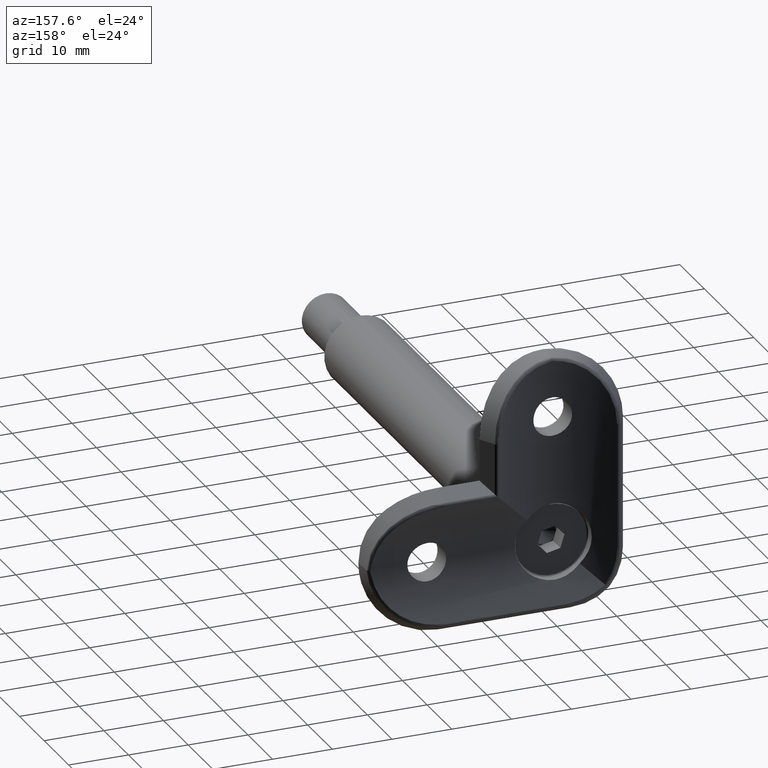
[diagram: clean part render]
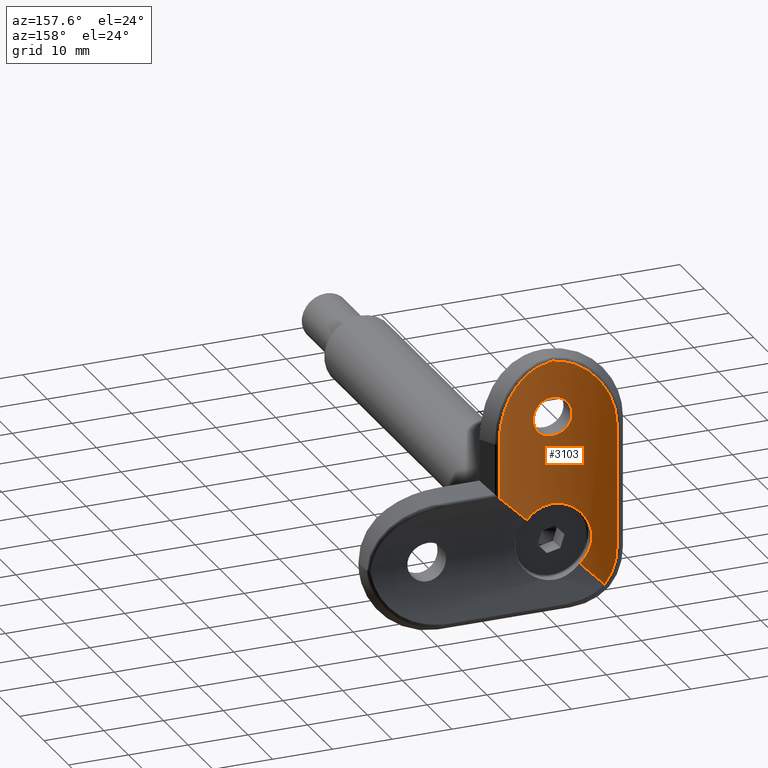
[diagram: same view with one face highlighted and labeled with its STEP entity id]
A machine part, auxiliary view. The second image highlights one B-rep face of the part: STEP entity #3103.
In plain terms, the highlighted cylindrical surface (partial cylindrical patch) has radius 21.2 mm, axis along (0, 0, 1).
Its self-contained STEP definition (entity closure, byte-faithful):
#14 = CARTESIAN_POINT ( 'NONE',  ( 2.821697825890808100, 3.688285540232296700, -11.62654535482909800 ) ) ;
#235 = CARTESIAN_POINT ( 'NONE',  ( 8.028210341979745500, 5.077781140750707900, -5.400692801681594300 ) ) ;
#257 = CARTESIAN_POINT ( 'NONE',  ( 0.8196855347610778600, 3.511953254549009100, -24.79018066023038000 ) ) ;
#259 = CARTESIAN_POINT ( 'NONE',  ( -8.979762680300606100, 5.494134989752449600, -7.219338350759732800 ) ) ;
#274 = CARTESIAN_POINT ( 'NONE',  ( 0.7008956395690474400, 3.508757327635668900, -0.6866340465157700900 ) ) ;
#307 = CARTESIAN_POINT ( 'NONE',  ( -9.648266983172643300, 5.822637755928643500, -9.564180071120645700 ) ) ;
#473 = CARTESIAN_POINT ( 'NONE',  ( -3.083140140979247200, 3.725230521975633600, -11.04954152590610800 ) ) ;
#526 = CARTESIAN_POINT ( 'NONE',  ( -1.982938509338522300, 3.592202637524425600, -7.416354507820790900 ) ) ;
#632 = CARTESIAN_POINT ( 'NONE',  ( -3.249920036851538600, 3.750584262071138500, -10.21354612878066000 ) ) ;
#679 = CARTESIAN_POINT ( 'NONE',  ( -6.939253979539715000, 4.625474900099697500, -37.93925397953974300 ) ) ;
#686 =( BOUNDED_CURVE ( )  B_SPLINE_CURVE ( 3, ( #11320, #12508, #6661, #7909 ),
 .UNSPECIFIED., .F., .F. ) 
 B_SPLINE_CURVE_WITH_KNOTS ( ( 4, 4 ),
 ( 1.086527370918879400, 1.360793071037660100 ),
 .UNSPECIFIED. ) 
 CURVE ( )  GEOMETRIC_REPRESENTATION_ITEM ( )  RATIONAL_B_SPLINE_CURVE ( ( 1.000000000000000000, 0.9937413444271188100, 0.9937413444271188100, 1.000000000000000000 ) ) 
 REPRESENTATION_ITEM ( '' )  );
#767 = CARTESIAN_POINT ( 'NONE',  ( -6.280948595869213100, 4.451697035919614200, -31.00634286945479800 ) ) ;
#833 = FACE_OUTER_BOUND ( 'NONE', #15417, .T. ) ;
#972 = DIRECTION ( 'NONE',  ( -0.0000000000000000000, -0.0000000000000000000, 1.000000000000000000 ) ) ;
#988 = CARTESIAN_POINT ( 'NONE',  ( 3.145561265201495300, 3.734618872339796600, -9.155709683242667700 ) ) ;
#1037 = CARTESIAN_POINT ( 'NONE',  ( 1.052626194037053200, 3.525244155462696300, -13.08208615108129900 ) ) ;
#1141 = CARTESIAN_POINT ( 'NONE',  ( 2.449135080784345500, 3.641406776904535300, -12.14685541878729100 ) ) ;
#1148 = EDGE_CURVE ( 'NONE', #9421, #1423, #11109, .T. ) ;
#1188 = CARTESIAN_POINT ( 'NONE',  ( 2.146746746564092100, 3.608432800475083200, -7.550746172628302900 ) ) ;
#1362 = CARTESIAN_POINT ( 'NONE',  ( 9.314569367520146400, 5.655469429669434300, -8.208717146909522800 ) ) ;
#1423 = VERTEX_POINT ( 'NONE', #3387 ) ;
#1467 = VERTEX_POINT ( 'NONE', #2320 ) ;
#1502 = CARTESIAN_POINT ( 'NONE',  ( -9.814006423039790800, 5.907961201125275800, -10.59493788712876300 ) ) ;
#1568 = CARTESIAN_POINT ( 'NONE',  ( 7.640005329831074800, 4.923398855832129300, -4.833077555929567600 ) ) ;
#1595 = CARTESIAN_POINT ( 'NONE',  ( -9.869903768333191600, 5.937670730854272000, -11.29222162081199000 ) ) ;
#1614 = CARTESIAN_POINT ( 'NONE',  ( -2.921096390877595500, 3.702048075234450200, -8.559467241933374400 ) ) ;
#1666 = CARTESIAN_POINT ( 'NONE',  ( -3.084227820100316800, 3.725388491958125900, -8.953349387053902900 ) ) ;
#1750 = CARTESIAN_POINT ( 'NONE',  ( -1.530514970212736500, 3.553280249799813700, -24.93258056701198900 ) ) ;
#1771 = CARTESIAN_POINT ( 'NONE',  ( -0.2122731573180384700, 3.500000000000000000, -6.750000000000028400 ) ) ;
#1822 = CARTESIAN_POINT ( 'NONE',  ( -1.631209832495484500, 3.562111999787713800, -7.181059836845472300 ) ) ;
#1854 = CARTESIAN_POINT ( 'NONE',  ( -0.6146749091286640700, 3.506671665155841400, -24.77251270863132900 ) ) ;
#1953 = CARTESIAN_POINT ( 'NONE',  ( -4.636625333527543800, 4.012288304126094800, -26.79789179319874400 ) ) ;
#2109 = B_SPLINE_CURVE_WITH_KNOTS ( 'NONE', 3,
 ( #13395, #7434, #257, #12339, #5227, #14556, #7488, #3916, #13549, #6337 ),
 .UNSPECIFIED., .F., .F.,
 ( 4, 2, 2, 2, 4 ),
 ( 0.01965012189004522100, 0.02087816175111066600, 0.02210620161217610700, 0.02333424147324155200, 0.02456228133430699400 ),
 .UNSPECIFIED. ) ;
#2122 = B_SPLINE_CURVE_WITH_KNOTS ( 'NONE', 3,
 ( #3461, #7455, #274, #9751, #3722, #2653, #7361, #8652, #3938, #2706, #11075, #9889, #7556, #7510, #1568, #235, #12261, #5138, #8551, #1362, #2549, #4935, #13266, #13471, #6359, #3883 ),
 .UNSPECIFIED., .F., .F.,
 ( 4, 2, 2, 2, 2, 2, 2, 2, 2, 2, 2, 2, 4 ),
 ( 0.0000000000000000000, 0.001059096318398943100, 0.002118192636797886200, 0.004236385273595772400, 0.005295481591994715700, 0.006354577910393657300, 0.008472770547191544800, 0.009531866865590484700, 0.01059096318398942600, 0.01270915582078730400, 0.01376825213918624400, 0.01482734845758518200, 0.01694554109438306200 ),
 .UNSPECIFIED. ) ;
#2160 = ORIENTED_EDGE ( 'NONE', *, *, #13151, .T. ) ;
#2213 = CARTESIAN_POINT ( 'NONE',  ( -9.120510286812539400, 5.561918182310763300, -37.17561934289742000 ) ) ;
#2229 = CARTESIAN_POINT ( 'NONE',  ( 3.084168572394268400, 3.725380431494499200, -11.04674660612331700 ) ) ;
#2320 = CARTESIAN_POINT ( 'NONE',  ( -4.419417382415908000, 3.965758996288283500, -35.41941738241593600 ) ) ;
#2370 = CARTESIAN_POINT ( 'NONE',  ( 0.2150234515079649800, 3.500000000000003600, -13.25000000000003200 ) ) ;
#2509 = EDGE_CURVE ( 'NONE', #5198, #9280, #2122, .T. ) ;
#2549 = CARTESIAN_POINT ( 'NONE',  ( 9.412720249738454100, 5.703964312871949700, -8.546246971881400300 ) ) ;
#2584 = CARTESIAN_POINT ( 'NONE',  ( -3.394036165119942000, 3.764077569085986700, -1.448969805547907700 ) ) ;
#2653 = CARTESIAN_POINT ( 'NONE',  ( 2.749051219980717800, 3.668071060762649400, -1.197756374471978100 ) ) ;
#2687 = CARTESIAN_POINT ( 'NONE',  ( -6.771736089016551200, 4.605174549759633300, -3.772360313300278100 ) ) ;
#2706 = CARTESIAN_POINT ( 'NONE',  ( 5.201211391313369100, 4.145738444536743100, -2.460482521009657900 ) ) ;
#2742 = CARTESIAN_POINT ( 'NONE',  ( -4.142312373482495500E-015, 3.499999999999998700, -0.5927337519480091500 ) ) ;
#2810 = VERTEX_POINT ( 'NONE', #3284 ) ;
#2814 = CARTESIAN_POINT ( 'NONE',  ( -2.820240372269860800, 3.688084609882379200, -11.62923282234741200 ) ) ;
#2858 = CARTESIAN_POINT ( 'NONE',  ( -0.8450918658946543500, 3.515822684157262800, -6.854596256490406600 ) ) ;
#2947 = CARTESIAN_POINT ( 'NONE',  ( 7.654484645290288600E-016, 3.499999999999997800, -24.75000000000000000 ) ) ;
#2949 = EDGE_CURVE ( 'NONE', #2810, #5198, #10738, .T. ) ;
#2963 = CARTESIAN_POINT ( 'NONE',  ( -5.694539199581145200, 4.237545917375435100, -36.69453919958116500 ) ) ;
#2997 = CARTESIAN_POINT ( 'NONE',  ( -6.008636480029251100, 4.367838672674281500, -29.17256710808448300 ) ) ;
#3013 = CARTESIAN_POINT ( 'NONE',  ( 3.980103062020105100E-016, 3.500000000000000400, -6.750000000000028400 ) ) ;
#3048 = ORIENTED_EDGE ( 'NONE', *, *, #4625, .F. ) ;
#3101 = CARTESIAN_POINT ( 'NONE',  ( -2.400762390252544800, 3.634514646583300000, -25.22130950967567700 ) ) ;
#3103 = ADVANCED_FACE ( 'NONE', ( #4384, #833 ), #4767, .F. ) ;
#3153 = CARTESIAN_POINT ( 'NONE',  ( -4.634369850146191200, 4.011575222313161300, -35.20446491468565900 ) ) ;
#3261 = ORIENTED_EDGE ( 'NONE', *, *, #9862, .F. ) ;
#3284 = CARTESIAN_POINT ( 'NONE',  ( -9.869903768333193400, 5.937670730854272900, -11.99999999999999600 ) ) ;
#3321 = CARTESIAN_POINT ( 'NONE',  ( -8.443072940590223400, 5.251088925988205400, -38.67981043266001300 ) ) ;
#3387 = CARTESIAN_POINT ( 'NONE',  ( -9.869903768333193400, 5.937670730854271100, -32.79917773719101600 ) ) ;
#3461 = CARTESIAN_POINT ( 'NONE',  ( -4.142312373482495500E-015, 3.499999999999998700, -0.5927337519480091500 ) ) ;
#3469 = ORIENTED_EDGE ( 'NONE', *, *, #9556, .F. ) ;
#3492 = CARTESIAN_POINT ( 'NONE',  ( 3.146742611658176700, 3.734796690945587600, -10.83991735683169800 ) ) ;
#3556 =( BOUNDED_CURVE ( )  B_SPLINE_CURVE ( 3, ( #9790, #2963, #679, #9980 ),
 .UNSPECIFIED., .F., .T. ) 
 B_SPLINE_CURVE_WITH_KNOTS ( ( 4, 4 ),
 ( 1.780799582552131900, 1.965033628129294200 ),
 .UNSPECIFIED. ) 
 CURVE ( )  GEOMETRIC_REPRESENTATION_ITEM ( )  RATIONAL_B_SPLINE_CURVE ( ( 1.000000000000000000, 0.9971734842632313800, 0.9971734842632313800, 1.000000000000000000 ) ) 
 REPRESENTATION_ITEM ( '' )  );
#3603 = CARTESIAN_POINT ( 'NONE',  ( 1.986840235901206300, 3.592554058555300900, -12.58083716629818700 ) ) ;
#3722 = CARTESIAN_POINT ( 'NONE',  ( 1.737335891831669700, 3.568589886669728100, -0.9057223172024552200 ) ) ;
#3807 = CARTESIAN_POINT ( 'NONE',  ( -9.579260868800373500, 5.787400085288401100, -9.223138721112762900 ) ) ;
#3883 = CARTESIAN_POINT ( 'NONE',  ( 9.869903768333186300, 5.937670730854282700, -11.99999999999999600 ) ) ;
#3916 = CARTESIAN_POINT ( 'NONE',  ( 3.817876781965056300, 3.843792837526661000, -26.03491231231689800 ) ) ;
#3919 = CARTESIAN_POINT ( 'NONE',  ( -6.285527558648517800, 4.445575563978216800, -3.298425311900017300 ) ) ;
#3938 = CARTESIAN_POINT ( 'NONE',  ( 4.616649565942608100, 4.006599728106436100, -2.086903307740982900 ) ) ;
#3966 = CARTESIAN_POINT ( 'NONE',  ( -7.430964604426193900, 4.843631501921241700, -4.557367113639502400 ) ) ;
#4137 = CARTESIAN_POINT ( 'NONE',  ( -1.628966586198432600, 3.561933388049748600, -12.82029146251903400 ) ) ;
#4367 = CARTESIAN_POINT ( 'NONE',  ( -5.198063538006012500, 4.146280144899908900, -34.48369756578563300 ) ) ;
#4384 = FACE_BOUND ( 'NONE', #14653, .T. ) ;
#4473 = DIRECTION ( 'NONE',  ( 0.0000000000000000000, 0.0000000000000000000, -1.000000000000000000 ) ) ;
#4591 = CARTESIAN_POINT ( 'NONE',  ( -9.869903768333193400, 5.937670730854271100, -32.79917773719101600 ) ) ;
#4617 = CARTESIAN_POINT ( 'NONE',  ( 0.2122209282609955300, 3.499999999999999600, -6.750000000000029300 ) ) ;
#4625 = EDGE_CURVE ( 'NONE', #1467, #8970, #13509, .T. ) ;
#4757 = CARTESIAN_POINT ( 'NONE',  ( 2.919325169900617300, 3.701800797952434300, -8.555881534881860900 ) ) ;
#4767 = CYLINDRICAL_SURFACE ( 'NONE', #12831, 21.20000000000000300 ) ;
#4935 = CARTESIAN_POINT ( 'NONE',  ( 9.579260868800362900, 5.787400085288410000, -9.223138721112759300 ) ) ;
#5022 = CARTESIAN_POINT ( 'NONE',  ( -0.7008956395690551000, 3.508757327635670300, -0.6866340465157696500 ) ) ;
#5074 = CARTESIAN_POINT ( 'NONE',  ( -8.207536722232589500, 5.152397115461222500, -5.692386200073741500 ) ) ;
#5138 = CARTESIAN_POINT ( 'NONE',  ( 8.703923101943098900, 5.365795259458939100, -6.590356865113080600 ) ) ;
#5173 = CARTESIAN_POINT ( 'NONE',  ( -7.640005329831079300, 4.923398855832122200, -4.833077555929569300 ) ) ;
#5198 = VERTEX_POINT ( 'NONE', #14422 ) ;
#5227 = CARTESIAN_POINT ( 'NONE',  ( 2.022119827160055600, 3.593252013380541200, -25.07210053248783100 ) ) ;
#5343 = CARTESIAN_POINT ( 'NONE',  ( -2.582659189079640400, 3.657561556894005000, -11.98444623506344100 ) ) ;
#5372 = CARTESIAN_POINT ( 'NONE',  ( -5.514202996452863400, 4.229047068120881800, -28.04212268826415800 ) ) ;
#5393 = CARTESIAN_POINT ( 'NONE',  ( -2.584254445682806700, 3.657764300185566000, -8.017857119937744400 ) ) ;
#5476 = CARTESIAN_POINT ( 'NONE',  ( -5.200093900757551100, 4.147010629871768800, -27.51941150081261300 ) ) ;
#5527 = VERTEX_POINT ( 'NONE', #9552 ) ;
#5612 = CARTESIAN_POINT ( 'NONE',  ( 3.980103062020105100E-016, 3.500000000000000400, -6.750000000000028400 ) ) ;
#5764 = CARTESIAN_POINT ( 'NONE',  ( 1.631443816221023400, 3.562114595624271500, -12.81897954523551600 ) ) ;
#5806 = CARTESIAN_POINT ( 'NONE',  ( -9.733887499212766400, 5.864093657662745200, -35.03286113649843300 ) ) ;
#5844 = CARTESIAN_POINT ( 'NONE',  ( 9.869903768333186300, 5.937670730854282700, -55.78043083657509300 ) ) ;
#5869 = CARTESIAN_POINT ( 'NONE',  ( 0.8473627998238541000, 3.515900058089371300, -13.14488691449724900 ) ) ;
#5932 = CARTESIAN_POINT ( 'NONE',  ( 1.983327530134741300, 3.592227115085013400, -7.416515866147545200 ) ) ;
#5966 = CARTESIAN_POINT ( 'NONE',  ( -9.869903768333202300, 5.937670730854268400, -33.92851295851757200 ) ) ;
#5983 = CARTESIAN_POINT ( 'NONE',  ( 3.082938367075407800, 3.725197969913978100, -8.949557896062385600 ) ) ;
#6047 = ORIENTED_EDGE ( 'NONE', *, *, #2949, .T. ) ;
#6236 = CARTESIAN_POINT ( 'NONE',  ( -5.482231532182831700, 4.219215617833337500, -2.661127909825694400 ) ) ;
#6293 = ORIENTED_EDGE ( 'NONE', *, *, #13959, .F. ) ;
#6337 = CARTESIAN_POINT ( 'NONE',  ( 4.419417382415914200, 3.965758996288291100, -26.58058261758407400 ) ) ;
#6340 = LINE ( 'NONE', #5844, #13399 ) ;
#6359 = CARTESIAN_POINT ( 'NONE',  ( 9.869903768333186300, 5.937670730854278200, -11.29222162081199300 ) ) ;
#6395 = CARTESIAN_POINT ( 'NONE',  ( -2.749051219980724900, 3.668071060762646300, -1.197756374471978400 ) ) ;
#6469 = DIRECTION ( 'NONE',  ( -0.0000000000000000000, -0.0000000000000000000, 1.000000000000000000 ) ) ;
#6510 = CARTESIAN_POINT ( 'NONE',  ( -0.2150763702856124100, 3.500000000000004000, -13.25000000000002700 ) ) ;
#6567 = CARTESIAN_POINT ( 'NONE',  ( -2.449601441195986800, 3.641447064136323200, -7.853419216136488900 ) ) ;
#6612 = ORIENTED_EDGE ( 'NONE', *, *, #1148, .T. ) ;
#6615 = CARTESIAN_POINT ( 'NONE',  ( -0.4264954454845091300, 3.503269792457310000, -13.22886130417467000 ) ) ;
#6661 = CARTESIAN_POINT ( 'NONE',  ( 6.320946545909584400, 4.371062042433568900, -24.67905345409040100 ) ) ;
#6795 = CARTESIAN_POINT ( 'NONE',  ( -5.776895001926104300, 4.301982309566621900, -33.40492162184929000 ) ) ;
#7002 = CARTESIAN_POINT ( 'NONE',  ( -1.383622672453584800E-014, 24.70000000000000300, -55.78043083657509300 ) ) ;
#7080 = CARTESIAN_POINT ( 'NONE',  ( -8.257289151218359300E-017, 3.499999999999999600, -13.25000000000002700 ) ) ;
#7296 = CARTESIAN_POINT ( 'NONE',  ( 9.869903768333186300, 5.937670730854282700, -11.99999999999999600 ) ) ;
#7361 = CARTESIAN_POINT ( 'NONE',  ( 3.394036165119933600, 3.764077569085990700, -1.448969805547906100 ) ) ;
#7398 = VERTEX_POINT ( 'NONE', #10325 ) ;
#7434 = CARTESIAN_POINT ( 'NONE',  ( 0.4093483788826144400, 3.499999999999999600, -24.75000000000000000 ) ) ;
#7436 = CARTESIAN_POINT ( 'NONE',  ( -4.616649565942617000, 4.006599728106431600, -2.086903307740983300 ) ) ;
#7455 = CARTESIAN_POINT ( 'NONE',  ( 0.3518718617179849600, 3.499999999999999100, -0.6329563686479576800 ) ) ;
#7488 = CARTESIAN_POINT ( 'NONE',  ( 3.141435426768507600, 3.731238859061897000, -25.58154428567567600 ) ) ;
#7510 = CARTESIAN_POINT ( 'NONE',  ( 7.430964604426190300, 4.843631501921247900, -4.557367113639499800 ) ) ;
#7556 = CARTESIAN_POINT ( 'NONE',  ( 6.771736089016546800, 4.605174549759637700, -3.772360313300278100 ) ) ;
#7604 = CARTESIAN_POINT ( 'NONE',  ( -3.250079504832142700, 3.750609001243481600, -9.788894795619961900 ) ) ;
#7656 = CARTESIAN_POINT ( 'NONE',  ( -3.229234686348995800, 3.747343156004549100, -10.42465043484685200 ) ) ;
#7753 = CARTESIAN_POINT ( 'NONE',  ( -2.146772466492740800, 3.608424265826158300, -7.550566543163457200 ) ) ;
#7788 = CARTESIAN_POINT ( 'NONE',  ( -0.3070831076045553200, 3.499999999999998200, -24.74999999999998900 ) ) ;
#7809 = CARTESIAN_POINT ( 'NONE',  ( -2.148951533804951200, 3.608658934248907300, -12.44730777981038700 ) ) ;
#7893 = CARTESIAN_POINT ( 'NONE',  ( -2.115645989103831500, 3.603785308346408200, -25.11101904412699400 ) ) ;
#7909 = CARTESIAN_POINT ( 'NONE',  ( 4.419417382415914200, 3.965758996288291100, -26.58058261758407400 ) ) ;
#7942 = CARTESIAN_POINT ( 'NONE',  ( -4.833149374055446800, 4.057424299396388700, -34.97450379331505800 ) ) ;
#8003 = VECTOR ( 'NONE', #6469, 1000.000000000000000 ) ;
#8107 = CARTESIAN_POINT ( 'NONE',  ( -9.299598858388270300, 5.648298117346991300, -36.64938574765185600 ) ) ;
#8156 = CARTESIAN_POINT ( 'NONE',  ( -8.697276097312068200, 5.364688446910015800, -38.19340591091579300 ) ) ;
#8172 = CARTESIAN_POINT ( 'NONE',  ( 2.819361986327547400, 3.687972149343806000, -8.369468306103423000 ) ) ;
#8325 = CARTESIAN_POINT ( 'NONE',  ( 1.048197691731650900, 3.525022644938177000, -6.916398592418987700 ) ) ;
#8340 = CARTESIAN_POINT ( 'NONE',  ( 3.980103062020105100E-016, 3.500000000000000400, -6.750000000000028400 ) ) ;
#8416 = CARTESIAN_POINT ( 'NONE',  ( 0.8434572887064090100, 3.515743156610002400, -6.854059665714348900 ) ) ;
#8551 = CARTESIAN_POINT ( 'NONE',  ( 8.979762680300600800, 5.494134989752459400, -7.219338350759736400 ) ) ;
#8636 = CARTESIAN_POINT ( 'NONE',  ( -1.737335891831678600, 3.568589886669724100, -0.9057223172024547700 ) ) ;
#8652 = CARTESIAN_POINT ( 'NONE',  ( 4.316626468119179300, 3.941753004755425200, -1.916090928632345500 ) ) ;
#8727 = CARTESIAN_POINT ( 'NONE',  ( -9.869903768333193400, 5.937670730854272900, -11.99999999999999600 ) ) ;
#8793 = CARTESIAN_POINT ( 'NONE',  ( -3.145719621873085600, 3.734642475028858500, -9.156101118596199100 ) ) ;
#8843 = CARTESIAN_POINT ( 'NONE',  ( -3.228861059861452900, 3.747285990941130200, -9.573182102551532700 ) ) ;
#8951 = CARTESIAN_POINT ( 'NONE',  ( -1.442403631853393000, 3.548207891406709400, -12.92016099372729500 ) ) ;
#8970 = VERTEX_POINT ( 'NONE', #14690 ) ;
#8982 = CARTESIAN_POINT ( 'NONE',  ( -3.225697564830604300, 3.745267437877521000, -25.63806483536939500 ) ) ;
#9002 = CARTESIAN_POINT ( 'NONE',  ( -2.920988639077607200, 3.702035023470496600, -11.44052626282842600 ) ) ;
#9032 = CARTESIAN_POINT ( 'NONE',  ( -4.423166486815460100, 3.965279730947413900, -26.57383854501989300 ) ) ;
#9146 = CARTESIAN_POINT ( 'NONE',  ( -5.024686875191769700, 4.103101410615650500, -27.27058588093900900 ) ) ;
#9280 = VERTEX_POINT ( 'NONE', #7296 ) ;
#9342 = VERTEX_POINT ( 'NONE', #8340 ) ;
#9373 = CARTESIAN_POINT ( 'NONE',  ( 3.228547803079398400, 3.747237876966726500, -9.571209963574892400 ) ) ;
#9421 = VERTEX_POINT ( 'NONE', #14577 ) ;
#9552 = CARTESIAN_POINT ( 'NONE',  ( 9.869903768333180900, 5.937670730854279100, -21.13009623166678400 ) ) ;
#9556 = EDGE_CURVE ( 'NONE', #15225, #9342, #11107, .T. ) ;
#9625 = EDGE_CURVE ( 'NONE', #5527, #7398, #686, .T. ) ;
#9751 = CARTESIAN_POINT ( 'NONE',  ( 1.392930344310200400, 3.542973607983050500, -0.8227999000106485100 ) ) ;
#9790 = CARTESIAN_POINT ( 'NONE',  ( -4.419417382415908000, 3.965758996288283500, -35.41941738241593600 ) ) ;
#9862 = EDGE_CURVE ( 'NONE', #8970, #7398, #2109, .T. ) ;
#9872 = CARTESIAN_POINT ( 'NONE',  ( -9.412720249738459400, 5.703964312871939900, -8.546246971881403800 ) ) ;
#9889 = CARTESIAN_POINT ( 'NONE',  ( 6.285527558648514200, 4.445575563978218600, -3.298425311900011500 ) ) ;
#9980 = CARTESIAN_POINT ( 'NONE',  ( -8.143007104551601900, 5.126256482337814700, -39.14300710455162900 ) ) ;
#10033 = CARTESIAN_POINT ( 'NONE',  ( -1.047707894291751000, 3.524988484338192200, -6.916151460673257900 ) ) ;
#10060 = B_SPLINE_CURVE_WITH_KNOTS ( 'NONE', 3,
 ( #5612, #4617, #13092, #8416, #8325, #13040, #14245, #5932, #1188, #14094, #15291, #8172, #4757, #5983, #988, #9373, #11778, #14298, #14194, #3492, #2229, #12987, #14, #10544, #1141, #15397, #3603, #5764, #12935, #1037, #5869, #15344, #2370, #7080 ),
 .UNSPECIFIED., .F., .F.,
 ( 4, 2, 2, 2, 2, 2, 2, 2, 2, 2, 2, 2, 2, 2, 2, 2, 4 ),
 ( 0.01017598832819751300, 0.01081183111334637700, 0.01144767389849524200, 0.01208351668364410600, 0.01271935946879296900, 0.01335520225394183500, 0.01399104503909069800, 0.01462688782423956400, 0.01526273060938842700, 0.01589857339453729100, 0.01653441617968615800, 0.01717025896483501800, 0.01780610174998388500, 0.01844194453513274500, 0.01907778732028161300, 0.01971363010543047600, 0.02034947289057934000 ),
 .UNSPECIFIED. ) ;
#10117 = CARTESIAN_POINT ( 'NONE',  ( -5.364278389834827200, 4.189347943437672600, -34.22184989815486500 ) ) ;
#10178 = CARTESIAN_POINT ( 'NONE',  ( -1.441005896736211800, 3.548113405047224900, -7.079158400248243100 ) ) ;
#10211 = CARTESIAN_POINT ( 'NONE',  ( -6.067991448120110900, 4.386864145476735600, -32.52887794143096300 ) ) ;
#10215 = ORIENTED_EDGE ( 'NONE', *, *, #9625, .T. ) ;
#10325 = CARTESIAN_POINT ( 'NONE',  ( 4.419417382415914200, 3.965758996288291100, -26.58058261758407400 ) ) ;
#10544 = CARTESIAN_POINT ( 'NONE',  ( 2.585957042374168200, 3.657971834102029100, -11.98001378453497200 ) ) ;
#10547 = ORIENTED_EDGE ( 'NONE', *, *, #2509, .T. ) ;
#10738 = B_SPLINE_CURVE_WITH_KNOTS ( 'NONE', 3,
 ( #8727, #1595, #1502, #307, #3807, #9872, #13452, #259, #13397, #5074, #14559, #5173, #3966, #2687, #3919, #6236, #13499, #7436, #12133, #2584, #6395, #8636, #14708, #5022, #12238, #2742 ),
 .UNSPECIFIED., .F., .F.,
 ( 4, 2, 2, 2, 2, 2, 2, 2, 2, 2, 2, 2, 4 ),
 ( 0.0000000000000000000, 0.002094732909185167900, 0.003142099363777751600, 0.004189465818370335800, 0.006284198727555501500, 0.007331565182148086500, 0.008378931636740671500, 0.01047366454592584000, 0.01152103100051842300, 0.01256839745511100600, 0.01466313036429617500, 0.01571049681888876000, 0.01675786327348134300 ),
 .UNSPECIFIED. ) ;
#10877 = CARTESIAN_POINT ( 'NONE',  ( -8.257289151218359300E-017, 3.499999999999999600, -13.25000000000002700 ) ) ;
#11075 = CARTESIAN_POINT ( 'NONE',  ( 5.482231532182828100, 4.219215617833339300, -2.661127909825690400 ) ) ;
#11107 = B_SPLINE_CURVE_WITH_KNOTS ( 'NONE', 3,
 ( #13674, #6510, #6615, #13622, #12559, #8951, #4137, #14773, #7809, #14930, #5343, #2814, #9002, #473, #14884, #7656, #632, #7604, #8843, #8793, #1666, #1614, #14827, #5393, #6567, #7753, #526, #1822, #10178, #10033, #2858, #11164, #1771, #3013 ),
 .UNSPECIFIED., .F., .F.,
 ( 4, 2, 2, 2, 2, 2, 2, 2, 2, 2, 2, 2, 2, 2, 2, 2, 4 ),
 ( 4.788478249303407400E-021, 0.0006359992705123446700, 0.001271998541024689300, 0.001907997811537034900, 0.002543997082049380000, 0.003179996352561724600, 0.003815995623074069700, 0.004451994893586414000, 0.005087994164098759100, 0.005723993434611103300, 0.006359992705123447600, 0.006995991975635792700, 0.007631991246148137800, 0.008267990516660482900, 0.008903989787172826200, 0.009539989057685169600, 0.01017598832819751300 ),
 .UNSPECIFIED. ) ;
#11109 = B_SPLINE_CURVE_WITH_KNOTS ( 'NONE', 3,
 ( #15276, #3321, #8156, #11857, #2213, #8107, #12867, #5806, #5966, #4591 ),
 .UNSPECIFIED., .F., .F.,
 ( 4, 2, 2, 2, 4 ),
 ( 7.204847710556567800E-018, 0.001678712418647840500, 0.002518068627971756700, 0.003357424837295672800, 0.006714849674591292700 ),
 .UNSPECIFIED. ) ;
#11141 = LINE ( 'NONE', #13427, #8003 ) ;
#11164 = CARTESIAN_POINT ( 'NONE',  ( -0.4279129834556336100, 3.503291781754003200, -6.771279595555607300 ) ) ;
#11320 = CARTESIAN_POINT ( 'NONE',  ( 9.869903768333180900, 5.937670730854279100, -21.13009623166678400 ) ) ;
#11353 = CARTESIAN_POINT ( 'NONE',  ( -5.653633147390291200, 4.267389878380338800, -28.31781561677278300 ) ) ;
#11450 = CARTESIAN_POINT ( 'NONE',  ( -1.230503630882686700, 3.533496935799594700, -24.86442471951854200 ) ) ;
#11498 = CARTESIAN_POINT ( 'NONE',  ( -6.158698159452119300, 4.414179208868596900, -29.76679584954255700 ) ) ;
#11778 = CARTESIAN_POINT ( 'NONE',  ( 3.249860940080327300, 3.750575094056840500, -9.783132837186418100 ) ) ;
#11857 = CARTESIAN_POINT ( 'NONE',  ( -9.021873285717616000, 5.515109499701652300, -37.43384803162585700 ) ) ;
#12019 = EDGE_CURVE ( 'NONE', #9280, #5527, #6340, .T. ) ;
#12133 = CARTESIAN_POINT ( 'NONE',  ( -4.316626468119188200, 3.941753004755419900, -1.916090928632347100 ) ) ;
#12238 = CARTESIAN_POINT ( 'NONE',  ( -0.3518718617179933400, 3.500000000000000000, -0.6329563686479582300 ) ) ;
#12261 = CARTESIAN_POINT ( 'NONE',  ( 8.207536722232580600, 5.152397115461234900, -5.692386200073742400 ) ) ;
#12339 = CARTESIAN_POINT ( 'NONE',  ( 1.631245096885654000, 3.558944002316265300, -24.95245669363502500 ) ) ;
#12376 = ORIENTED_EDGE ( 'NONE', *, *, #15124, .T. ) ;
#12488 = CARTESIAN_POINT ( 'NONE',  ( -5.984219229118410000, 4.361839764119241500, -32.82901177917651800 ) ) ;
#12508 = CARTESIAN_POINT ( 'NONE',  ( 8.149217861674488400, 5.032505702001669700, -22.85078213832547800 ) ) ;
#12536 = CARTESIAN_POINT ( 'NONE',  ( -5.652880295709301200, 4.267005241732309900, -33.68342016320046600 ) ) ;
#12559 = CARTESIAN_POINT ( 'NONE',  ( -1.048939250356789600, 3.525048663777425900, -13.08343881332696200 ) ) ;
#12593 = CARTESIAN_POINT ( 'NONE',  ( -6.249818957877916900, 4.441772120225840200, -31.61985070038018400 ) ) ;
#12650 = CARTESIAN_POINT ( 'NONE',  ( -3.732316609077885400, 3.829548297666588700, -25.97752190457164200 ) ) ;
#12831 = AXIS2_PLACEMENT_3D ( 'NONE', #7002, #972, #15431 ) ;
#12867 = CARTESIAN_POINT ( 'NONE',  ( -9.380172378836016700, 5.687935093936303600, -36.38066184073049000 ) ) ;
#12935 = CARTESIAN_POINT ( 'NONE',  ( 1.443390716916787200, 3.548287770999292200, -12.91957191817199100 ) ) ;
#12987 = CARTESIAN_POINT ( 'NONE',  ( 2.921365973794408400, 3.702086230445782400, -11.43992884807946500 ) ) ;
#13040 = CARTESIAN_POINT ( 'NONE',  ( 1.439361432263695200, 3.548011368770917600, -7.078432833375385900 ) ) ;
#13092 = CARTESIAN_POINT ( 'NONE',  ( 0.4233678462630752800, 3.503186138682575600, -6.770585122424211700 ) ) ;
#13151 = EDGE_CURVE ( 'NONE', #1423, #2810, #11141, .T. ) ;
#13266 = CARTESIAN_POINT ( 'NONE',  ( 9.648266983172630900, 5.822637755928652400, -9.564180071120640400 ) ) ;
#13395 = CARTESIAN_POINT ( 'NONE',  ( 7.654484645290288600E-016, 3.499999999999997800, -24.75000000000000000 ) ) ;
#13397 = CARTESIAN_POINT ( 'NONE',  ( -8.703923101943109600, 5.365795259458927500, -6.590356865113082400 ) ) ;
#13399 = VECTOR ( 'NONE', #4473, 1000.000000000000000 ) ;
#13427 = CARTESIAN_POINT ( 'NONE',  ( -9.869903768333193400, 5.937670730854272000, -55.78043083657509300 ) ) ;
#13452 = CARTESIAN_POINT ( 'NONE',  ( -9.314569367520160600, 5.655469429669424600, -8.208717146909528100 ) ) ;
#13471 = CARTESIAN_POINT ( 'NONE',  ( 9.814006423039785400, 5.907961201125284700, -10.59493788712876300 ) ) ;
#13499 = CARTESIAN_POINT ( 'NONE',  ( -5.201211391313378000, 4.145738444536741300, -2.460482521009658800 ) ) ;
#13509 = B_SPLINE_CURVE_WITH_KNOTS ( 'NONE', 3,
 ( #13813, #3153, #7942, #4367, #10117, #12536, #6795, #12488, #10211, #12593, #767, #11498, #2997, #11353, #5372, #5476, #9146, #1953, #9032, #15115, #12650, #8982, #15060, #3101, #7893, #1750, #11450, #1854, #7788, #2947 ),
 .UNSPECIFIED., .F., .F.,
 ( 4, 2, 2, 2, 2, 2, 2, 2, 2, 2, 2, 2, 2, 2, 4 ),
 ( 0.004910196046825550700, 0.005831441412026772700, 0.006752686777227994600, 0.007673932142429217400, 0.008595177507630438400, 0.01043766823803290300, 0.01228015896843536600, 0.01320140433363659700, 0.01412264969883783100, 0.01504389506403906000, 0.01596514042924029200, 0.01688638579444152300, 0.01780763115964275800, 0.01872887652484398600, 0.01965012189004522100 ),
 .UNSPECIFIED. ) ;
#13549 = CARTESIAN_POINT ( 'NONE',  ( 4.131049098682686000, 3.904294493901156600, -26.29221433385084000 ) ) ;
#13622 = CARTESIAN_POINT ( 'NONE',  ( -0.8423372769297830000, 3.515719559818268900, -13.14609465822471700 ) ) ;
#13674 = CARTESIAN_POINT ( 'NONE',  ( -8.257289151218359300E-017, 3.499999999999999600, -13.25000000000002700 ) ) ;
#13813 = CARTESIAN_POINT ( 'NONE',  ( -4.419417382415908000, 3.965758996288283500, -35.41941738241593600 ) ) ;
#13959 = EDGE_CURVE ( 'NONE', #9342, #15225, #10060, .T. ) ;
#14094 = CARTESIAN_POINT ( 'NONE',  ( 2.446491921321325400, 3.641096756837779200, -7.850106238976468200 ) ) ;
#14194 = CARTESIAN_POINT ( 'NONE',  ( 3.229193408776422000, 3.747337907017010700, -10.42398131921980200 ) ) ;
#14245 = CARTESIAN_POINT ( 'NONE',  ( 1.628732243441264500, 3.561908895737120300, -7.179501880725230700 ) ) ;
#14298 = CARTESIAN_POINT ( 'NONE',  ( 3.250137710635876400, 3.750618031036955500, -10.21267900241728000 ) ) ;
#14422 = CARTESIAN_POINT ( 'NONE',  ( -4.142312373482495500E-015, 3.499999999999998700, -0.5927337519480091500 ) ) ;
#14556 = CARTESIAN_POINT ( 'NONE',  ( 2.775613660985278800, 3.679064055779763800, -25.38529346294245000 ) ) ;
#14559 = CARTESIAN_POINT ( 'NONE',  ( -8.028210341979754400, 5.077781140750700800, -5.400692801681596000 ) ) ;
#14577 = CARTESIAN_POINT ( 'NONE',  ( -8.143007104551601900, 5.126256482337814700, -39.14300710455162900 ) ) ;
#14653 = EDGE_LOOP ( 'NONE', ( #3469, #6293 ) ) ;
#14690 = CARTESIAN_POINT ( 'NONE',  ( 7.654484645290288600E-016, 3.499999999999997800, -24.75000000000000000 ) ) ;
#14708 = CARTESIAN_POINT ( 'NONE',  ( -1.392930344310209000, 3.542973607983053200, -0.8227999000106489500 ) ) ;
#14773 = CARTESIAN_POINT ( 'NONE',  ( -1.982036205794349500, 3.592112263205554400, -12.58439713500635000 ) ) ;
#14827 = CARTESIAN_POINT ( 'NONE',  ( -2.819422580313717800, 3.687981758046336100, -8.369626499654142300 ) ) ;
#14884 = CARTESIAN_POINT ( 'NONE',  ( -3.145685426611443300, 3.734636929484066200, -10.84436239147627000 ) ) ;
#14930 = CARTESIAN_POINT ( 'NONE',  ( -2.448245710141899500, 3.641302186762524600, -12.14788291266886800 ) ) ;
#15060 = CARTESIAN_POINT ( 'NONE',  ( -2.956038528789703100, 3.705234713248745800, -25.48467951486709600 ) ) ;
#15115 = CARTESIAN_POINT ( 'NONE',  ( -3.971734512737623600, 3.874094224589499800, -26.16464769060538100 ) ) ;
#15124 = EDGE_CURVE ( 'NONE', #1467, #9421, #3556, .T. ) ;
#15217 = ORIENTED_EDGE ( 'NONE', *, *, #12019, .T. ) ;
#15225 = VERTEX_POINT ( 'NONE', #10877 ) ;
#15276 = CARTESIAN_POINT ( 'NONE',  ( -8.143007104551601900, 5.126256482337814700, -39.14300710455162900 ) ) ;
#15291 = CARTESIAN_POINT ( 'NONE',  ( 2.583674240239135500, 3.657691575613070800, -8.017056976341793400 ) ) ;
#15344 = CARTESIAN_POINT ( 'NONE',  ( 0.4274857573253203500, 3.503269827856297300, -13.22886874102762500 ) ) ;
#15397 = CARTESIAN_POINT ( 'NONE',  ( 2.150169383533389500, 3.608784226559000400, -12.44622616599948900 ) ) ;
#15417 = EDGE_LOOP ( 'NONE', ( #10547, #15217, #10215, #3261, #3048, #12376, #6612, #2160, #6047 ) ) ;
#15431 = DIRECTION ( 'NONE',  ( 1.000000000000000000, 0.0000000000000000000, 0.0000000000000000000 ) ) ;